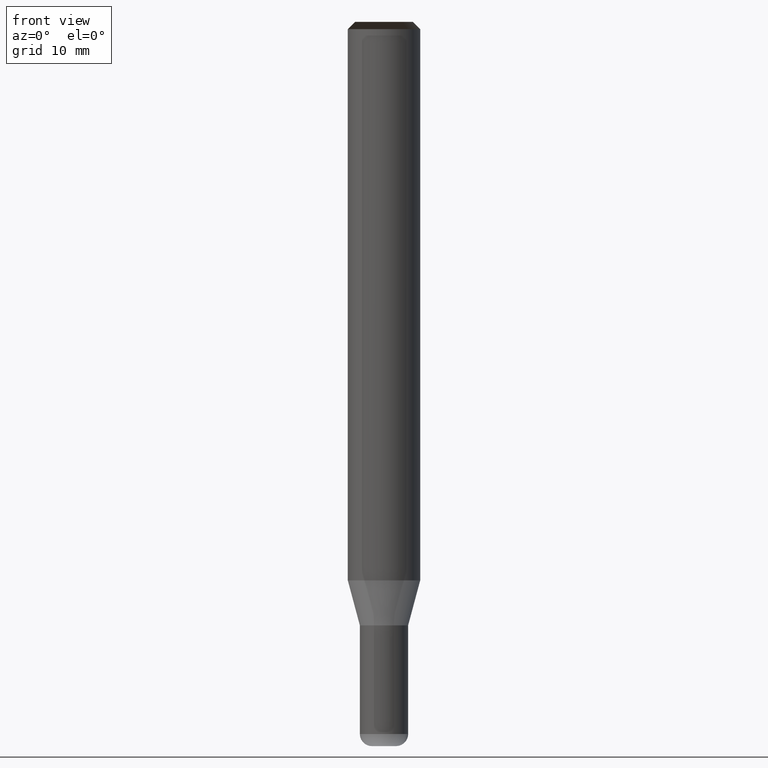
[diagram: clean part render]
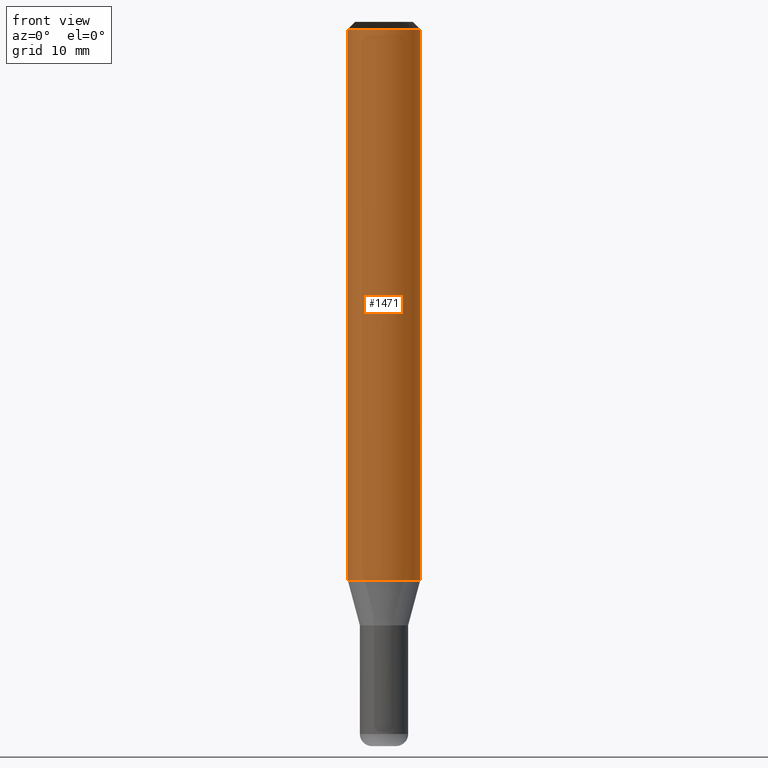
[diagram: same view with one face highlighted and labeled with its STEP entity id]
A machine part, front view. The second image highlights one B-rep face of the part: STEP entity #1471.
In plain terms, the highlighted face is a freeform B-spline surface patch.
Its self-contained STEP definition (entity closure, byte-faithful):
#1142=CARTESIAN_POINT('',(3.0,0.0,0.0));
#1146=CARTESIAN_POINT('',(-3.0,0.0,0.0));
#1147=CARTESIAN_POINT('',(3.0,0.0,45.667949192431));
#1151=CARTESIAN_POINT('',(-3.0,0.0,45.667949192431));
#1158=CARTESIAN_POINT('',(-3.0,-3.0,0.0));
#1159=CARTESIAN_POINT('',(0.0,-3.0,0.0));
#1160=CARTESIAN_POINT('',(3.0,-3.0,0.0));
#1161=CARTESIAN_POINT('',(-3.0,-3.0,45.667949192431));
#1162=CARTESIAN_POINT('',(0.0,-3.0,45.667949192431));
#1163=CARTESIAN_POINT('',(3.0,-3.0,45.667949192431));
#1452=(
BOUNDED_SURFACE()
B_SPLINE_SURFACE(1,2,(
(#1146,#1158,#1159,#1160,#1142),
(#1151,#1161,#1162,#1163,#1147)
), .UNSPECIFIED.,.F.,.F.,.F.)
B_SPLINE_SURFACE_WITH_KNOTS((2,2),(3,2,3),(
0.0,1.0),(
0.0,0.5,1.0), .UNSPECIFIED.)
GEOMETRIC_REPRESENTATION_ITEM()
RATIONAL_B_SPLINE_SURFACE(((1.0,0.707106781187,1.0,0.707106781187,1.0),
(1.0,0.707106781187,1.0,0.707106781187,1.0)
))
REPRESENTATION_ITEM('')
SURFACE()
);
#1453=(
BOUNDED_CURVE()
B_SPLINE_CURVE(1,(#1151,#1146),.UNSPECIFIED.,.F.,.F.)
B_SPLINE_CURVE_WITH_KNOTS((2,2),
(0.0,1.0),.UNSPECIFIED.)
CURVE()
GEOMETRIC_REPRESENTATION_ITEM()
RATIONAL_B_SPLINE_CURVE((1.0,1.0))
REPRESENTATION_ITEM('')
);
#1454=(
BOUNDED_CURVE()
B_SPLINE_CURVE(2,(#1146,#1158,#1159,#1160,#1142),.UNSPECIFIED.,.F.,.F.)
B_SPLINE_CURVE_WITH_KNOTS((3,2,3),
(0.0,0.5,1.0),.UNSPECIFIED.)
CURVE()
GEOMETRIC_REPRESENTATION_ITEM()
RATIONAL_B_SPLINE_CURVE((1.0,0.707106781187,1.0,0.707106781187,1.0))
REPRESENTATION_ITEM('')
);
#1455=(
BOUNDED_CURVE()
B_SPLINE_CURVE(1,(#1142,#1147),.UNSPECIFIED.,.F.,.F.)
B_SPLINE_CURVE_WITH_KNOTS((2,2),
(0.0,1.0),.UNSPECIFIED.)
CURVE()
GEOMETRIC_REPRESENTATION_ITEM()
RATIONAL_B_SPLINE_CURVE((1.0,1.0))
REPRESENTATION_ITEM('')
);
#1456=(
BOUNDED_CURVE()
B_SPLINE_CURVE(2,(#1147,#1163,#1162,#1161,#1151),.UNSPECIFIED.,.F.,.F.)
B_SPLINE_CURVE_WITH_KNOTS((3,2,3),
(0.0,0.5,1.0),.UNSPECIFIED.)
CURVE()
GEOMETRIC_REPRESENTATION_ITEM()
RATIONAL_B_SPLINE_CURVE((1.0,0.707106781187,1.0,0.707106781187,1.0))
REPRESENTATION_ITEM('')
);
#1457=VERTEX_POINT('',#1142);
#1458=VERTEX_POINT('',#1146);
#1459=VERTEX_POINT('',#1147);
#1460=VERTEX_POINT('',#1151);
#1461=EDGE_CURVE('',#1460,#1458,#1453,.T.);
#1462=EDGE_CURVE('',#1458,#1457,#1454,.T.);
#1463=EDGE_CURVE('',#1457,#1459,#1455,.T.);
#1464=EDGE_CURVE('',#1459,#1460,#1456,.T.);
#1465=ORIENTED_EDGE('',*,*,#1461,.T.);
#1466=ORIENTED_EDGE('',*,*,#1462,.T.);
#1467=ORIENTED_EDGE('',*,*,#1463,.T.);
#1468=ORIENTED_EDGE('',*,*,#1464,.T.);
#1469=EDGE_LOOP('',(#1465,#1466,#1467,#1468));
#1470=FACE_OUTER_BOUND('',#1469,.T.);
#1471=ADVANCED_FACE('',(#1470),#1452,.T.);